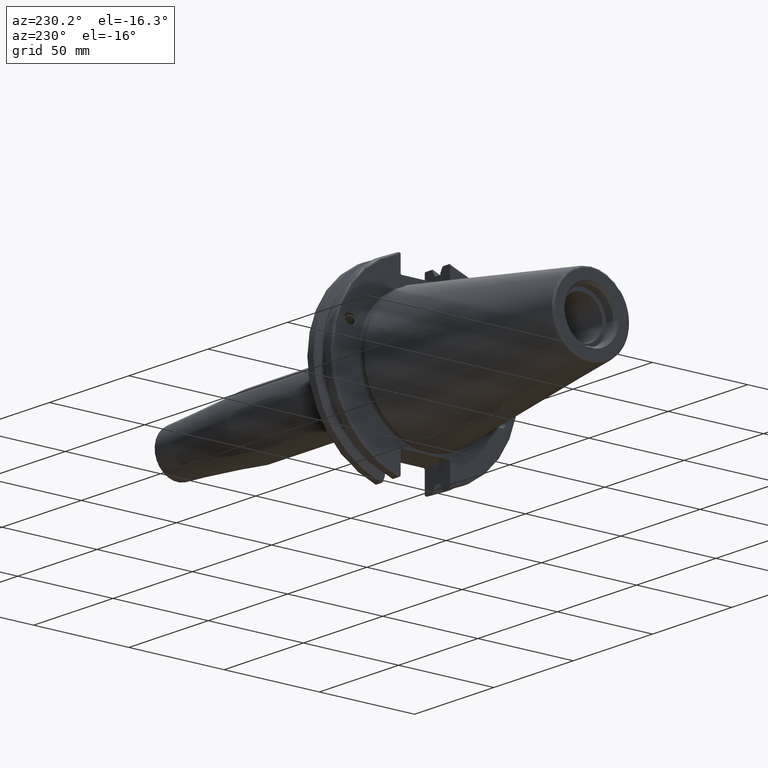
[diagram: clean part render]
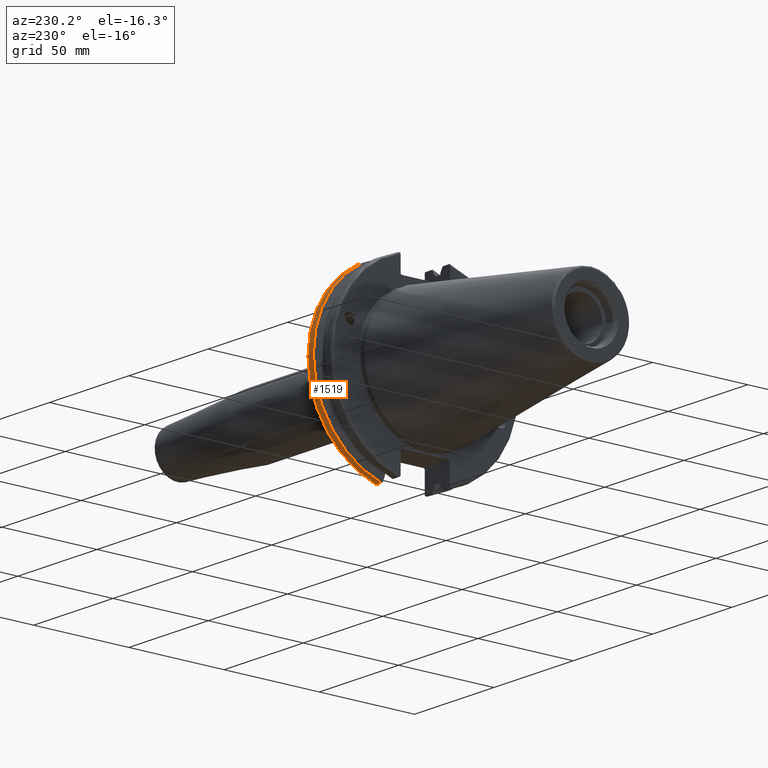
[diagram: same view with one face highlighted and labeled with its STEP entity id]
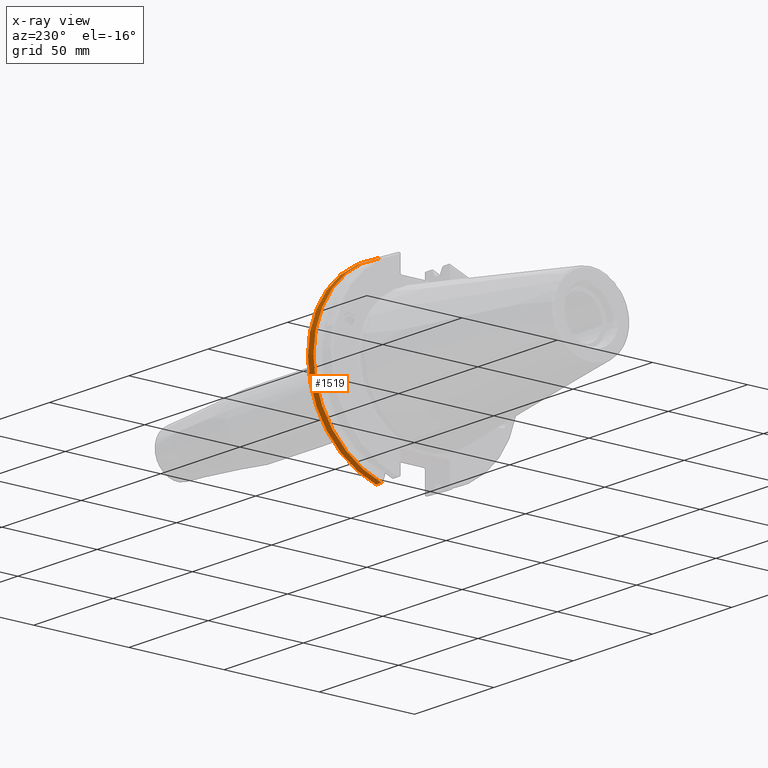
[diagram: x-ray of the same camera — body ghosted, the highlighted face saturated]
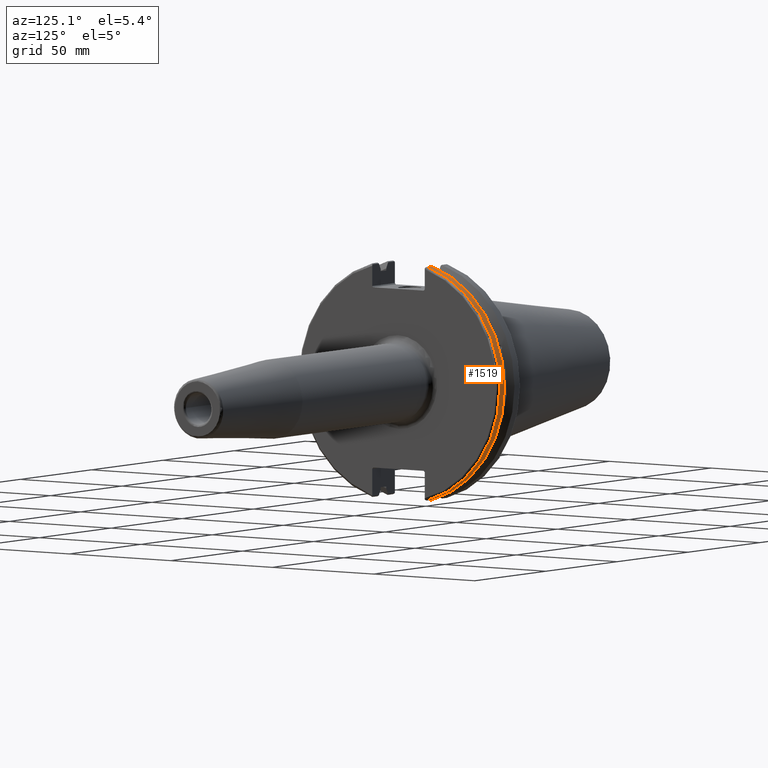
[diagram: same view with one face highlighted and labeled with its STEP entity id]
A machine part, auxiliary view. The second image highlights one B-rep face of the part: STEP entity #1519.
The next image is the same camera in x-ray: the body ghosted, the highlighted face saturated — about 0% of this face is hidden behind the body in this view.
A second angle (auxiliary view) of the same face is appended — the face is thin or edge-on in the first view.
In plain terms, the highlighted cylindrical surface (partial cylindrical patch) has radius 49.2125 mm, axis along (1, 0, 0).
Its self-contained STEP definition (entity closure, byte-faithful):
#141=LINE('',#2843,#233);
#169=LINE('',#3035,#261);
#233=VECTOR('',#1987,10.);
#261=VECTOR('',#2081,10.);
#289=CYLINDRICAL_SURFACE('',#1695,49.2125);
#420=FACE_OUTER_BOUND('',#524,.T.);
#524=EDGE_LOOP('',(#1363,#1364,#1365,#1366));
#598=CIRCLE('',#1660,49.2125);
#609=CIRCLE('',#1696,49.2125);
#732=VERTEX_POINT('',#2817);
#733=VERTEX_POINT('',#2826);
#735=VERTEX_POINT('',#2839);
#764=VERTEX_POINT('',#3034);
#915=EDGE_CURVE('',#732,#733,#598,.T.);
#919=EDGE_CURVE('',#735,#732,#141,.T.);
#975=EDGE_CURVE('',#733,#764,#169,.T.);
#977=EDGE_CURVE('',#735,#764,#609,.T.);
#1363=ORIENTED_EDGE('',*,*,#915,.F.);
#1364=ORIENTED_EDGE('',*,*,#919,.F.);
#1365=ORIENTED_EDGE('',*,*,#977,.T.);
#1366=ORIENTED_EDGE('',*,*,#975,.F.);
#1519=ADVANCED_FACE('',(#420),#289,.T.);
#1660=AXIS2_PLACEMENT_3D('',#2827,#1982,#1983);
#1695=AXIS2_PLACEMENT_3D('',#3039,#2082,#2083);
#1696=AXIS2_PLACEMENT_3D('',#3040,#2084,#2085);
#1982=DIRECTION('center_axis',(1.,0.,0.));
#1983=DIRECTION('ref_axis',(0.,1.,-6.12323399573677E-17));
#1987=DIRECTION('',(1.,0.,0.));
#2081=DIRECTION('',(-1.,0.,0.));
#2082=DIRECTION('center_axis',(1.,0.,0.));
#2083=DIRECTION('ref_axis',(0.,1.,0.));
#2084=DIRECTION('center_axis',(1.,0.,0.));
#2085=DIRECTION('ref_axis',(0.,0.,-1.));
#2817=CARTESIAN_POINT('',(18.05,13.4317035994433,-47.3440544806494));
#2826=CARTESIAN_POINT('',(18.05,13.4317035994433,47.3440544806494));
#2827=CARTESIAN_POINT('Origin',(18.05,0.,0.));
#2839=CARTESIAN_POINT('',(14.6602090340487,13.4317035994433,-47.3440544806494));
#2843=CARTESIAN_POINT('',(16.8551045170244,13.4317035994433,-47.3440544806494));
#3034=CARTESIAN_POINT('',(14.6602090340487,13.4317035994433,47.3440544806494));
#3035=CARTESIAN_POINT('',(16.8551045170244,13.4317035994433,47.3440544806494));
#3039=CARTESIAN_POINT('Origin',(16.8551045170244,0.,0.));
#3040=CARTESIAN_POINT('Origin',(14.6602090340487,0.,0.));